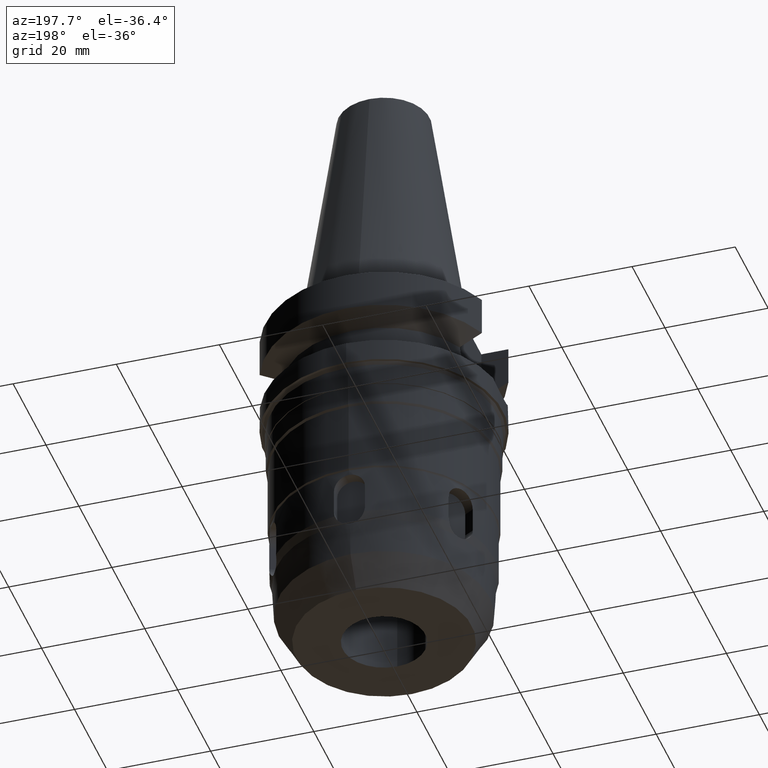
[diagram: clean part render]
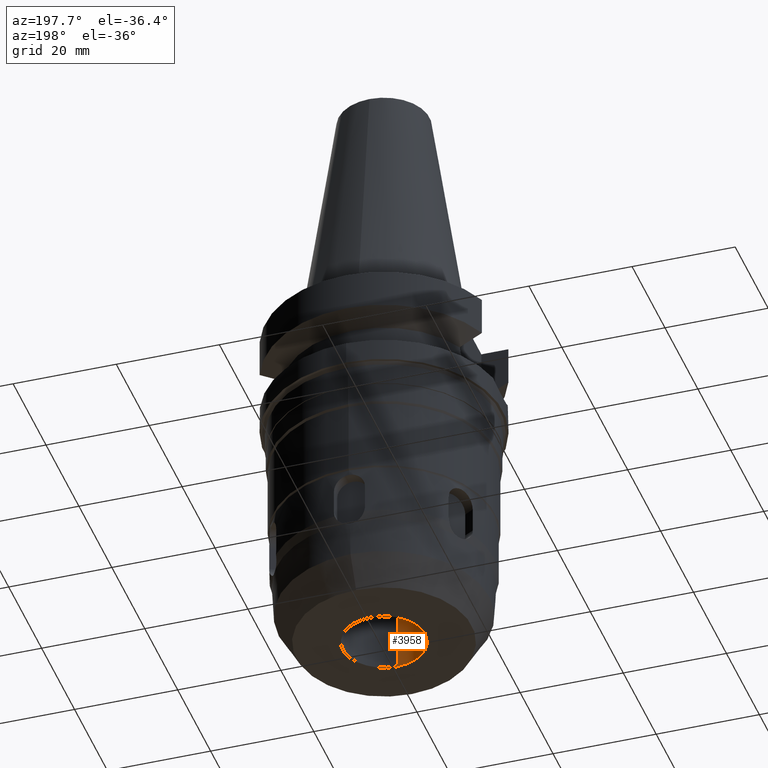
[diagram: same view with one face highlighted and labeled with its STEP entity id]
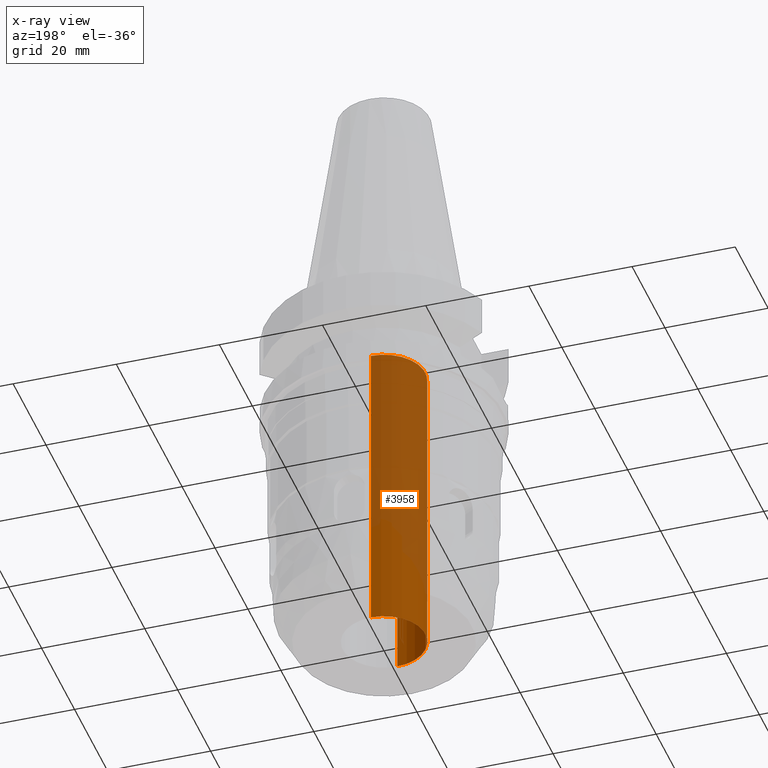
[diagram: x-ray of the same camera — body ghosted, the highlighted face saturated]
A machine part, auxiliary view. The second image highlights one B-rep face of the part: STEP entity #3958.
The next image is the same camera in x-ray: the body ghosted, the highlighted face saturated — about 66% of this face is hidden behind the body in this view.
In plain terms, the highlighted cylindrical surface (partial cylindrical patch) has radius 8 mm, axis along (0, 0, -1).
Its self-contained STEP definition (entity closure, byte-faithful):
#1951=CARTESIAN_POINT('',(0.E0,1.889874940444E-14,-7.E1));
#1952=DIRECTION('',(0.E0,0.E0,-1.E0));
#1953=DIRECTION('',(0.E0,-1.E0,0.E0));
#1954=AXIS2_PLACEMENT_3D('',#1951,#1952,#1953);
#1967=DIRECTION('',(0.E0,0.E0,1.E0));
#1968=VECTOR('',#1967,6.E1);
#1969=CARTESIAN_POINT('',(0.E0,-8.E0,-7.E1));
#1970=LINE('',#1969,#1968);
#1974=DIRECTION('',(0.E0,0.E0,1.E0));
#1975=VECTOR('',#1974,6.E1);
#1976=CARTESIAN_POINT('',(0.E0,8.E0,-7.E1));
#1977=LINE('',#1976,#1975);
#2005=CARTESIAN_POINT('',(0.E0,1.889874940444E-14,-1.E1));
#2006=DIRECTION('',(0.E0,0.E0,1.E0));
#2007=DIRECTION('',(0.E0,1.E0,0.E0));
#2008=AXIS2_PLACEMENT_3D('',#2005,#2006,#2007);
#2375=CARTESIAN_POINT('',(0.E0,-8.E0,-1.E1));
#2376=CARTESIAN_POINT('',(0.E0,8.E0,-1.E1));
#2377=VERTEX_POINT('',#2375);
#2378=VERTEX_POINT('',#2376);
#2379=CARTESIAN_POINT('',(0.E0,8.E0,-7.E1));
#2380=VERTEX_POINT('',#2379);
#2381=CARTESIAN_POINT('',(0.E0,-8.E0,-7.E1));
#2382=VERTEX_POINT('',#2381);
#3944=CARTESIAN_POINT('',(0.E0,1.889874940444E-14,5.432E1));
#3945=DIRECTION('',(0.E0,0.E0,-1.E0));
#3946=DIRECTION('',(0.E0,-1.E0,0.E0));
#3947=AXIS2_PLACEMENT_3D('',#3944,#3945,#3946);
#3948=CYLINDRICAL_SURFACE('',#3947,8.E0);
#3950=ORIENTED_EDGE('',*,*,#3949,.F.);
#3951=ORIENTED_EDGE('',*,*,#3937,.F.);
#3953=ORIENTED_EDGE('',*,*,#3952,.T.);
#3955=ORIENTED_EDGE('',*,*,#3954,.F.);
#3956=EDGE_LOOP('',(#3950,#3951,#3953,#3955));
#3957=FACE_OUTER_BOUND('',#3956,.F.);
#1955=CIRCLE('',#1954,8.E0);
#2009=CIRCLE('',#2008,8.E0);
#3937=EDGE_CURVE('',#2382,#2380,#1955,.T.);
#3949=EDGE_CURVE('',#2380,#2378,#1977,.T.);
#3952=EDGE_CURVE('',#2382,#2377,#1970,.T.);
#3954=EDGE_CURVE('',#2378,#2377,#2009,.T.);
#3958=ADVANCED_FACE('',(#3957),#3948,.F.);